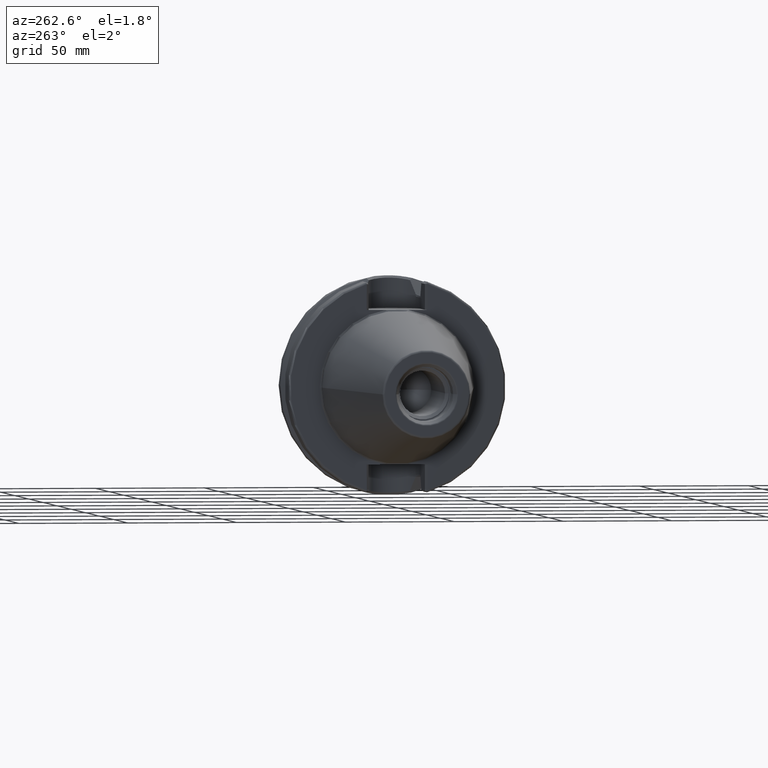
[diagram: clean part render]
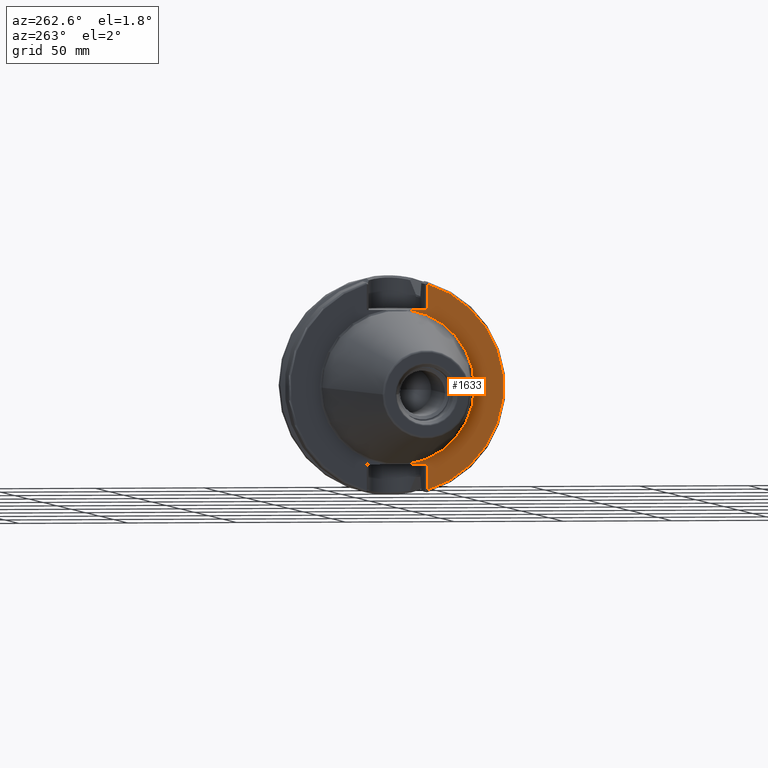
[diagram: same view with one face highlighted and labeled with its STEP entity id]
A machine part, auxiliary view. The second image highlights one B-rep face of the part: STEP entity #1633.
In plain terms, the highlighted planar face has unit normal (1, 0, 0).
Its self-contained STEP definition (entity closure, byte-faithful):
#111=CARTESIAN_POINT('',(3.E0,0.E0,0.E0));
#112=DIRECTION('',(-1.E0,0.E0,0.E0));
#113=DIRECTION('',(0.E0,-1.448140381786E-1,-9.894588896697E-1));
#114=AXIS2_PLACEMENT_3D('',#111,#112,#113);
#135=DIRECTION('',(-5.798787725116E-7,5.799135254102E-7,-9.999999999997E-1));
#136=VECTOR('',#135,1.177335004623E1);
#137=CARTESIAN_POINT('',(3.E0,-1.39025E1,-3.52E1));
#138=LINE('',#137,#136);
#139=DIRECTION('',(1.226013541690E-6,-1.226161370859E-6,-9.999999999985E-1));
#140=VECTOR('',#139,1.177335390066E1);
#141=CARTESIAN_POINT('',(2.999985565709E0,-1.390248556397E1,4.697335390064E1));
#142=LINE('',#141,#140);
#593=CARTESIAN_POINT('',(2.999993172884E0,-1.390249317248E1,-4.697335004622E1));
#605=CARTESIAN_POINT('',(3.E0,0.E0,0.E0));
#606=DIRECTION('',(-1.E0,0.E0,0.E0));
#607=DIRECTION('',(0.E0,-2.837968955579E-1,-9.588844153868E-1));
#608=AXIS2_PLACEMENT_3D('',#605,#606,#607);
#679=DIRECTION('',(0.E0,1.E0,0.E0));
#680=VECTOR('',#679,8.750740591798E0);
#681=CARTESIAN_POINT('',(3.E0,-1.39025E1,3.52E1));
#682=LINE('',#681,#680);
#720=CARTESIAN_POINT('',(3.E0,0.E0,0.E0));
#721=DIRECTION('',(1.E0,0.E0,0.E0));
#722=DIRECTION('',(0.E0,-1.448140381786E-1,9.894588896697E-1));
#723=AXIS2_PLACEMENT_3D('',#720,#721,#722);
#745=DIRECTION('',(0.E0,-1.E0,0.E0));
#746=VECTOR('',#745,8.750740591798E0);
#747=CARTESIAN_POINT('',(3.E0,-5.151759408202E0,-3.52E1));
#748=LINE('',#747,#746);
#1266=CARTESIAN_POINT('',(3.E0,-3.5575E1,0.E0));
#1268=VERTEX_POINT('',#1266);
#1332=CARTESIAN_POINT('',(3.E0,-5.151759408202E0,3.52E1));
#1333=VERTEX_POINT('',#1332);
#1340=CARTESIAN_POINT('',(3.E0,-5.151759408202E0,-3.52E1));
#1341=VERTEX_POINT('',#1340);
#1370=CARTESIAN_POINT('',(2.999985565709E0,-1.390248556397E1,4.697335390064E1));
#1371=CARTESIAN_POINT('',(3.E0,-1.39025E1,3.52E1));
#1372=VERTEX_POINT('',#1370);
#1373=VERTEX_POINT('',#1371);
#1395=VERTEX_POINT('',#593);
#1397=CARTESIAN_POINT('',(3.E0,-1.39025E1,-3.52E1));
#1398=VERTEX_POINT('',#1397);
#1613=CARTESIAN_POINT('',(3.E0,0.E0,0.E0));
#1614=DIRECTION('',(1.E0,0.E0,0.E0));
#1615=DIRECTION('',(0.E0,-1.E0,0.E0));
#1616=AXIS2_PLACEMENT_3D('',#1613,#1614,#1615);
#1617=PLANE('',#1616);
#1619=ORIENTED_EDGE('',*,*,#1618,.F.);
#1621=ORIENTED_EDGE('',*,*,#1620,.F.);
#1622=ORIENTED_EDGE('',*,*,#1585,.T.);
#1624=ORIENTED_EDGE('',*,*,#1623,.F.);
#1626=ORIENTED_EDGE('',*,*,#1625,.F.);
#1628=ORIENTED_EDGE('',*,*,#1627,.F.);
#1630=ORIENTED_EDGE('',*,*,#1629,.F.);
#1631=EDGE_LOOP('',(#1619,#1621,#1622,#1624,#1626,#1628,#1630));
#1632=FACE_OUTER_BOUND('',#1631,.F.);
#1633=ADVANCED_FACE('',(#1632),#1617,.F.);
#115=CIRCLE('',#114,3.5575E1);
#609=CIRCLE('',#608,4.89875E1);
#724=CIRCLE('',#723,3.5575E1);
#1585=EDGE_CURVE('',#1341,#1268,#115,.T.);
#1618=EDGE_CURVE('',#1398,#1395,#138,.T.);
#1620=EDGE_CURVE('',#1341,#1398,#748,.T.);
#1623=EDGE_CURVE('',#1333,#1268,#724,.T.);
#1625=EDGE_CURVE('',#1373,#1333,#682,.T.);
#1627=EDGE_CURVE('',#1372,#1373,#142,.T.);
#1629=EDGE_CURVE('',#1395,#1372,#609,.T.);